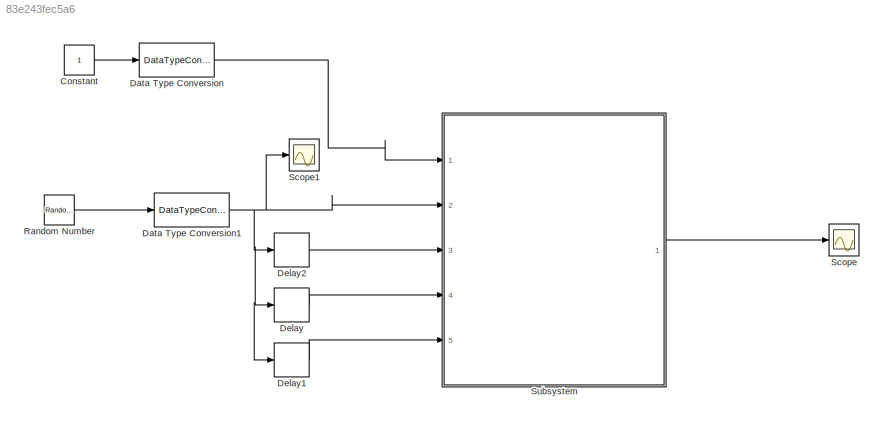
MODEL slx_83e243fec5a6
KIND model
CONFIG AbsTol = auto
CONFIG EnableMultiTasking = off
CONFIG FixedStep = auto
CONFIG MaxStep = auto
CONFIG MinStep = auto
CONFIG RelTol = 1e-3
CONFIG SampleTimeConstraint = Unconstrained
CONFIG Solver = VariableStepAuto
CONFIG SolverName = VariableStepAuto
CONFIG StartTime = 0.0
CONFIG StopTime = 16
BLOCK [Constant] Constant
  OutDataTypeStr = fixdt(0,2)
  OutMax = 1
  OutMin = 1
BLOCK [DataTypeConversion] Data Type Conversion
  OutDataTypeStr = fixdt(0,2)
  OutMax = 1
  OutMin = 1
  RndMeth = Floor
  SaturateOnIntegerOverflow = off
BLOCK [DataTypeConversion] Data Type Conversion1
  OutDataTypeStr = fixdt(0,4)
  OutMax = 8
  OutMin = 0
  RndMeth = Floor
BLOCK [Delay] Delay
  InputPortMap = u0
  Ports = [1, 1]
BLOCK [Delay] Delay1
  DelayLength = 3
  InputPortMap = u0
  Ports = [1, 1]
BLOCK [Delay] Delay2
  DelayLength = 1
  InputPortMap = u0
  Ports = [1, 1]
BLOCK [RandomNumber] Random Number
  SampleTime = 1
  Variance = 20
BLOCK [Scope] Scope
  NumInputPorts = 1
  Ports = [1]
  ScopeSpecificationString = Simulink.scopes.TimeScopeBlockCfg('CurrentConfiguration', extmgr.ConfigurationSet(extmgr.Configuration('Core','General UI',true),extmgr.Configuration('Core','Source UI',true),extmgr.Configuration('Sources','WiredSimulink',true),extmgr.Configuration('Visuals','Time Domain',true,'SerializedDisplays',{struct('MinYLimReal','-0.125','MaxYLimReal','1.125','YLabelReal','','MinYLimMag','0.00000','MaxYLimM...<+1350ch>
BLOCK [Scope] Scope1
  NumInputPorts = 1
  Ports = [1]
  ScopeSpecificationString = Simulink.scopes.TimeScopeBlockCfg('CurrentConfiguration', extmgr.ConfigurationSet(extmgr.Configuration('Core','General UI',true),extmgr.Configuration('Core','Source UI',true),extmgr.Configuration('Sources','WiredSimulink',true,'DataLoggingVariableName','ScopeData1'),extmgr.Configuration('Visuals','Time Domain',true,'SerializedDisplays',{struct('MinYLimReal','-1.00000','MaxYLimReal','9.00000','YLab...<+1410ch>
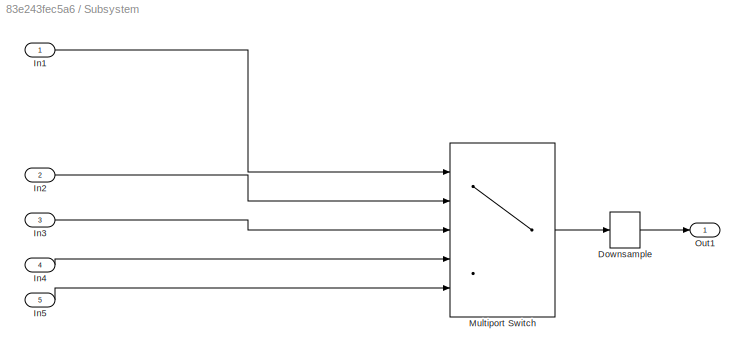
BLOCK [SubSystem] Subsystem
  Ports = [5, 1]
  RequestExecContextInheritance = off
  Variant = off
BLOCK [DownSample] Subsystem/Downsample
  InputProcessing = Elements as channels (sample based)
  N = 4
BLOCK [Inport] Subsystem/In1
  IconDisplay = Port number
BLOCK [Inport] Subsystem/In2
  IconDisplay = Port number
  Port = 2
BLOCK [Inport] Subsystem/In3
  IconDisplay = Port number
  Port = 3
BLOCK [Inport] Subsystem/In4
  IconDisplay = Port number
  Port = 4
BLOCK [Inport] Subsystem/In5
  IconDisplay = Port number
  Port = 5
BLOCK [MultiPortSwitch] Subsystem/Multiport Switch
  DataPortIndices = {1,2,3,4}
  InputSameDT = off
  Inputs = 4
  OutDataTypeStr = fixdt(0,3)
  OutMax = 4
  OutMin = 1
  Ports = [5, 1]
  SaturateOnIntegerOverflow = off
BLOCK [Outport] Subsystem/Out1
  IconDisplay = Port number
LINE Constant:1 -> Data Type Conversion:1
NET Data Type Conversion1:1 -> Delay1:1, Delay2:1, Delay:1, Scope1:1, Subsystem:2
LINE Data Type Conversion:1 -> Subsystem:1
LINE Delay1:1 -> Subsystem:5
LINE Delay2:1 -> Subsystem:3
LINE Delay:1 -> Subsystem:4
LINE Random Number:1 -> Data Type Conversion1:1
LINE Subsystem/Downsample:1 -> Subsystem/Out1:1
LINE Subsystem/In1:1 -> Subsystem/Multiport Switch:1
LINE Subsystem/In2:1 -> Subsystem/Multiport Switch:2
LINE Subsystem/In3:1 -> Subsystem/Multiport Switch:3
LINE Subsystem/In4:1 -> Subsystem/Multiport Switch:4
LINE Subsystem/In5:1 -> Subsystem/Multiport Switch:5
LINE Subsystem/Multiport Switch:1 -> Subsystem/Downsample:1
LINE Subsystem:1 -> Scope:1
note: NET lines group one-source signal fan-out (src -> all destinations, sorted); 1:1 wires keep LINE
